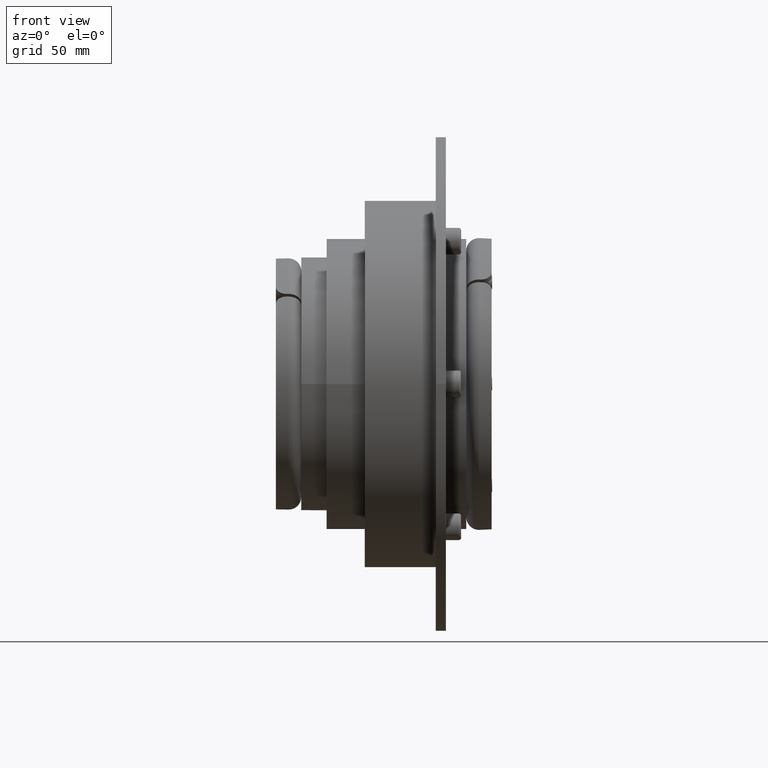
[diagram: clean part render]
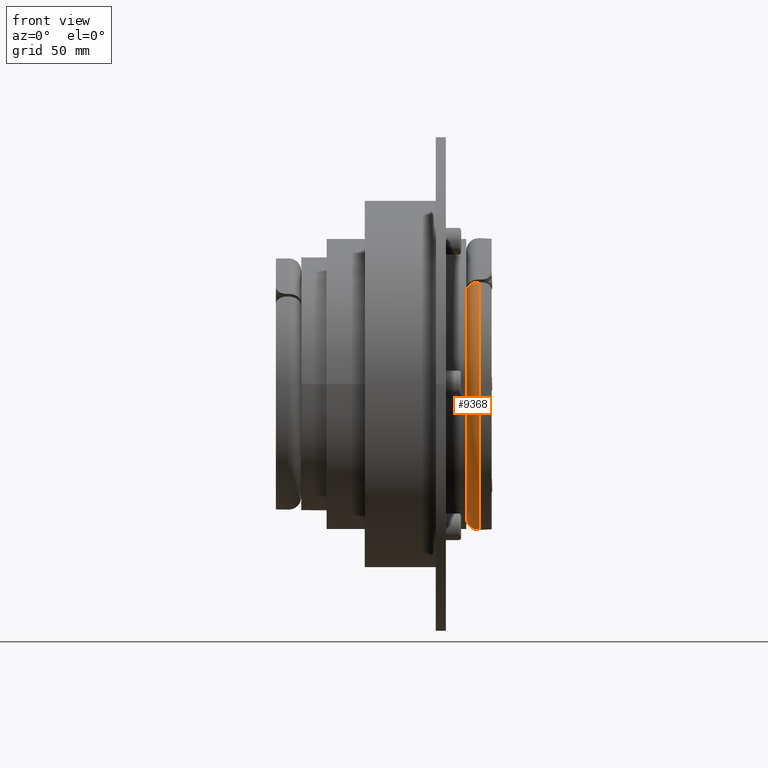
[diagram: same view with one face highlighted and labeled with its STEP entity id]
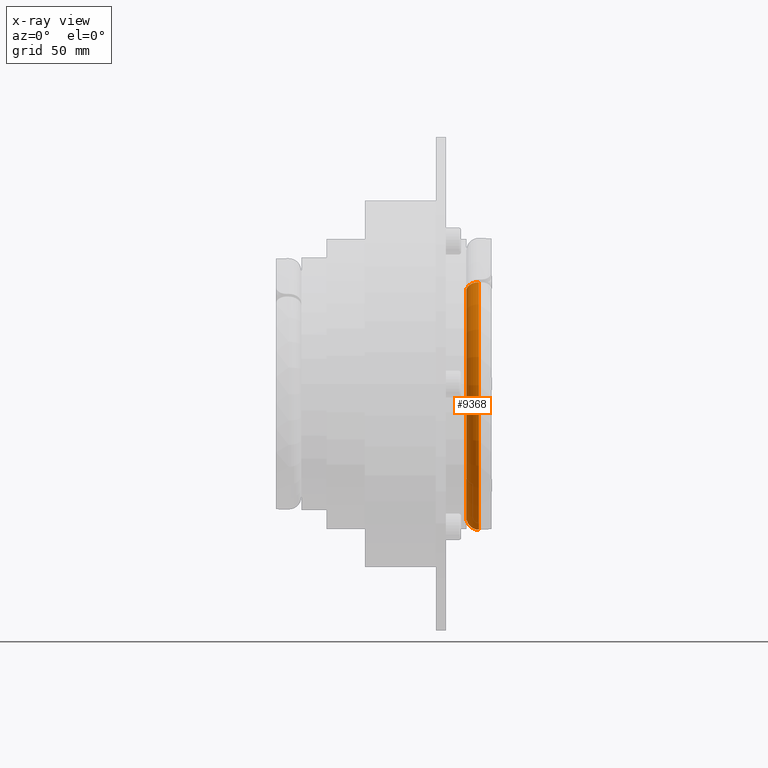
[diagram: x-ray of the same camera — body ghosted, the highlighted face saturated]
A machine part, front view. The second image highlights one B-rep face of the part: STEP entity #9368.
The next image is the same camera in x-ray: the body ghosted, the highlighted face saturated — about 0% of this face is hidden behind the body in this view.
In plain terms, the highlighted toroidal blend (fillet) surface has major radius 52.5 mm and minor (blend) radius 5 mm.
Its self-contained STEP definition (entity closure, byte-faithful):
#1949=CARTESIAN_POINT('',(0.0,-5.365379E-015,-52.500000000000000));
#1950=VERTEX_POINT('',#1949);
#1951=CARTESIAN_POINT('',(5.0,-5.977682E-015,-57.500000000000021));
#1952=VERTEX_POINT('',#1951);
#1953=CARTESIAN_POINT('',(5.0,-6.429183E-015,-52.500000000000000));
#1954=DIRECTION('',(0.0,-1.0,0.0));
#1955=DIRECTION('',(0.0,0.0,-1.0));
#1956=AXIS2_PLACEMENT_3D('',#1953,#1954,#1955);
#1957=CIRCLE('',#1956,4.999999999999998);
#1958=EDGE_CURVE('',#1950,#1952,#1957,.T.);
#8244=CARTESIAN_POINT('',(0.0,-37.649647832852878,36.588987661073055));
#8245=VERTEX_POINT('',#8244);
#8252=CARTESIAN_POINT('',(5.0,-41.185511182522617,40.124851010742795));
#8253=VERTEX_POINT('',#8252);
#8254=CARTESIAN_POINT('',(5.0,-41.185511182522617,40.124851010742795));
#8255=CARTESIAN_POINT('',(4.691474999645220,-41.185511182522617,40.124851010742795));
#8256=CARTESIAN_POINT('',(4.354526031133838,-41.163985723122387,40.103325551342557));
#8257=CARTESIAN_POINT('',(3.694629301094605,-41.071164714127200,40.010504542347370));
#8258=CARTESIAN_POINT('',(3.371681528625303,-40.999869203425533,39.939209031645717));
#8259=CARTESIAN_POINT('',(2.801593339155310,-40.832886059665668,39.772225887885860));
#8260=CARTESIAN_POINT('',(2.501932409342873,-40.721812729647041,39.661152557867240));
#8261=CARTESIAN_POINT('',(1.942483089169658,-40.457472617119485,39.396812445339691));
#8262=CARTESIAN_POINT('',(1.682694617783097,-40.304205920352047,39.243545748572217));
#8263=CARTESIAN_POINT('',(1.246354300058850,-39.995650373436860,38.934990201657030));
#8264=CARTESIAN_POINT('',(1.029605180859060,-39.811932702114838,38.751272530335015));
#8265=CARTESIAN_POINT('',(0.655780177968364,-39.416304766801609,38.355644595021786));
#8266=CARTESIAN_POINT('',(0.498704151653287,-39.204394570192491,38.143734398412676));
#8267=CARTESIAN_POINT('',(0.262549448170788,-38.801231572994830,37.740571401215007));
#8268=CARTESIAN_POINT('',(0.161717039640583,-38.572834339272916,37.512174167493086));
#8269=CARTESIAN_POINT('',(0.030442367786764,-38.106139854560766,37.045479682780929));
#8270=CARTESIAN_POINT('',(-7.751836E-016,-37.867842618262543,36.807182446482713));
#8271=CARTESIAN_POINT('',(0.0,-37.649647832852878,36.588987661073055));
#8272=B_SPLINE_CURVE_WITH_KNOTS('',3,(#8254,#8255,#8256,#8257,#8258,#8259,#8260,#8261,#8262,#8263,#8264,#8265,#8266,#8267,#8268,#8269,#8270,#8271),.UNSPECIFIED.,.F.,.U.,(4,2,2,2,2,2,2,2,4),(0.0,0.092557500106434,0.185115000212868,0.277676530985413,0.370238061757958,0.462804954395315,0.555371847032671,0.647944054462301,0.740516261891930),.UNSPECIFIED.);
#8273=EDGE_CURVE('',#8253,#8245,#8272,.T.);
#9317=CARTESIAN_POINT('',(5.0,0.0,0.0));
#9318=DIRECTION('',(1.000000000000000,0.0,0.0));
#9319=DIRECTION('',(0.0,0.707106781186548,-0.707106781186548));
#9320=AXIS2_PLACEMENT_3D('',#9317,#9318,#9319);
#9321=CIRCLE('',#9320,57.500000000000021);
#9322=EDGE_CURVE('',#8253,#1952,#9321,.T.);
#9351=CARTESIAN_POINT('',(5.0,0.0,0.0));
#9352=DIRECTION('',(1.0,0.0,0.0));
#9353=DIRECTION('',(0.0,0.0,-1.0));
#9354=AXIS2_PLACEMENT_3D('',#9351,#9352,#9353);
#9355=TOROIDAL_SURFACE('',#9354,52.500000000000000,4.999999999999998);
#9356=ORIENTED_EDGE('',*,*,#1958,.T.);
#9357=ORIENTED_EDGE('',*,*,#9322,.F.);
#9358=ORIENTED_EDGE('',*,*,#8273,.T.);
#9359=CARTESIAN_POINT('',(0.0,0.0,0.0));
#9360=DIRECTION('',(1.000000000000000,0.0,0.0));
#9361=DIRECTION('',(0.0,0.707106781186548,-0.707106781186548));
#9362=AXIS2_PLACEMENT_3D('',#9359,#9360,#9361);
#9363=CIRCLE('',#9362,52.500000000000000);
#9364=EDGE_CURVE('',#8245,#1950,#9363,.T.);
#9365=ORIENTED_EDGE('',*,*,#9364,.T.);
#9366=EDGE_LOOP('',(#9356,#9357,#9358,#9365));
#9367=FACE_OUTER_BOUND('',#9366,.T.);
#9368=ADVANCED_FACE('',(#9367),#9355,.T.);